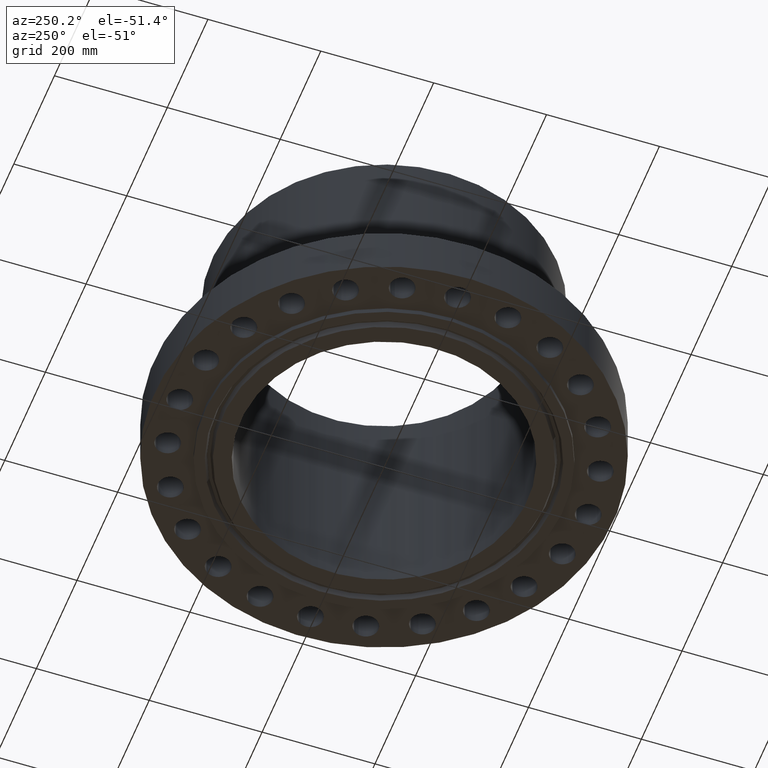
[diagram: clean part render]
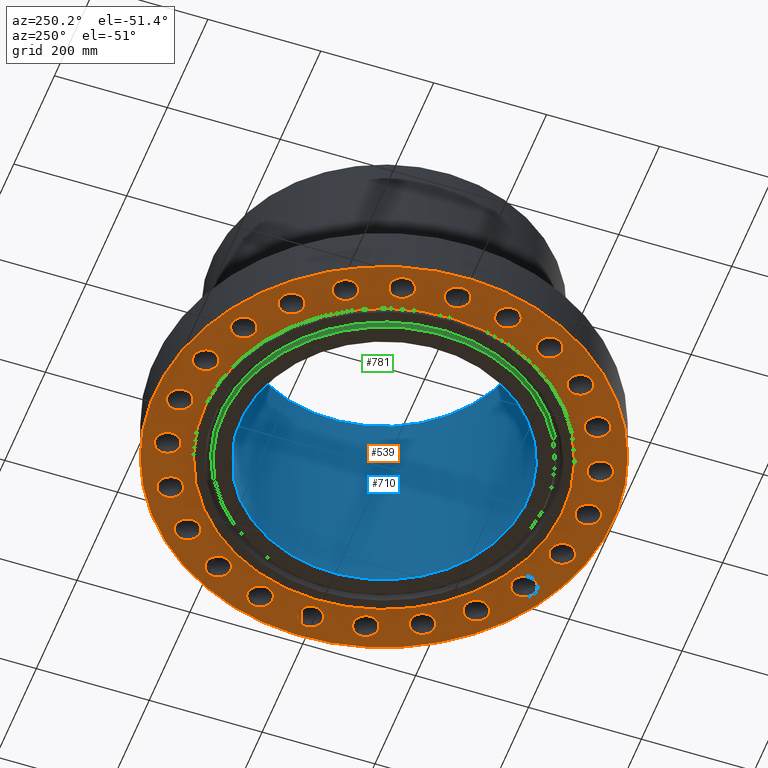
[diagram: same view with three faces highlighted in distinct colors, each labeled with its STEP entity id]
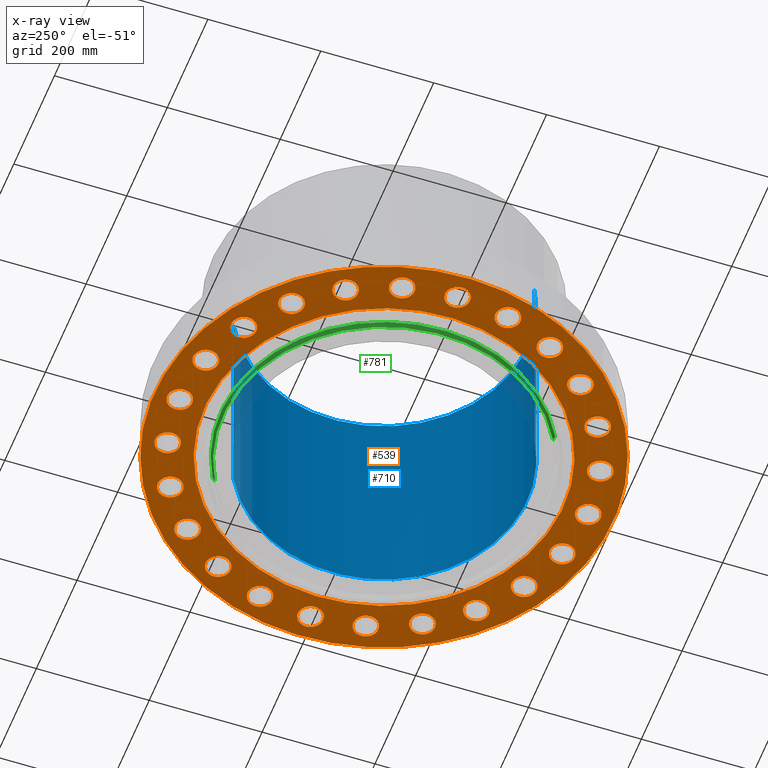
[diagram: x-ray of the same camera — body ghosted, the three highlighted faces saturated]
A machine part, auxiliary view with three faces highlighted in distinct colors.
The next image is the same camera in x-ray (body ghosted, the three faces saturated) — at least one of them is partly hidden behind the body in this view.
Their STEP definitions:

[orange] entity #539 — the highlighted planar face has unit normal (0, 0, -1).
#65=AXIS2_PLACEMENT_3D('Circle Axis2P3D',#63,#64,$) ;
#78=AXIS2_PLACEMENT_3D('Plane Axis2P3D',#75,#76,#77) ;
#82=AXIS2_PLACEMENT_3D('Circle Axis2P3D',#80,#81,$) ;
#91=AXIS2_PLACEMENT_3D('Circle Axis2P3D',#89,#90,$) ;
#100=AXIS2_PLACEMENT_3D('Circle Axis2P3D',#98,#99,$) ;
#109=AXIS2_PLACEMENT_3D('Circle Axis2P3D',#107,#108,$) ;
#118=AXIS2_PLACEMENT_3D('Circle Axis2P3D',#116,#117,$) ;
#127=AXIS2_PLACEMENT_3D('Circle Axis2P3D',#125,#126,$) ;
#136=AXIS2_PLACEMENT_3D('Circle Axis2P3D',#134,#135,$) ;
#145=AXIS2_PLACEMENT_3D('Circle Axis2P3D',#143,#144,$) ;
#154=AXIS2_PLACEMENT_3D('Circle Axis2P3D',#152,#153,$) ;
#163=AXIS2_PLACEMENT_3D('Circle Axis2P3D',#161,#162,$) ;
#172=AXIS2_PLACEMENT_3D('Circle Axis2P3D',#170,#171,$) ;
#181=AXIS2_PLACEMENT_3D('Circle Axis2P3D',#179,#180,$) ;
#190=AXIS2_PLACEMENT_3D('Circle Axis2P3D',#188,#189,$) ;
#199=AXIS2_PLACEMENT_3D('Circle Axis2P3D',#197,#198,$) ;
#208=AXIS2_PLACEMENT_3D('Circle Axis2P3D',#206,#207,$) ;
#217=AXIS2_PLACEMENT_3D('Circle Axis2P3D',#215,#216,$) ;
#226=AXIS2_PLACEMENT_3D('Circle Axis2P3D',#224,#225,$) ;
#235=AXIS2_PLACEMENT_3D('Circle Axis2P3D',#233,#234,$) ;
#244=AXIS2_PLACEMENT_3D('Circle Axis2P3D',#242,#243,$) ;
#253=AXIS2_PLACEMENT_3D('Circle Axis2P3D',#251,#252,$) ;
#262=AXIS2_PLACEMENT_3D('Circle Axis2P3D',#260,#261,$) ;
#271=AXIS2_PLACEMENT_3D('Circle Axis2P3D',#269,#270,$) ;
#280=AXIS2_PLACEMENT_3D('Circle Axis2P3D',#278,#279,$) ;
#289=AXIS2_PLACEMENT_3D('Circle Axis2P3D',#287,#288,$) ;
#298=AXIS2_PLACEMENT_3D('Circle Axis2P3D',#296,#297,$) ;
#307=AXIS2_PLACEMENT_3D('Circle Axis2P3D',#305,#306,$) ;
#316=AXIS2_PLACEMENT_3D('Circle Axis2P3D',#314,#315,$) ;
#325=AXIS2_PLACEMENT_3D('Circle Axis2P3D',#323,#324,$) ;
#334=AXIS2_PLACEMENT_3D('Circle Axis2P3D',#332,#333,$) ;
#343=AXIS2_PLACEMENT_3D('Circle Axis2P3D',#341,#342,$) ;
#352=AXIS2_PLACEMENT_3D('Circle Axis2P3D',#350,#351,$) ;
#361=AXIS2_PLACEMENT_3D('Circle Axis2P3D',#359,#360,$) ;
#370=AXIS2_PLACEMENT_3D('Circle Axis2P3D',#368,#369,$) ;
#379=AXIS2_PLACEMENT_3D('Circle Axis2P3D',#377,#378,$) ;
#388=AXIS2_PLACEMENT_3D('Circle Axis2P3D',#386,#387,$) ;
#397=AXIS2_PLACEMENT_3D('Circle Axis2P3D',#395,#396,$) ;
#406=AXIS2_PLACEMENT_3D('Circle Axis2P3D',#404,#405,$) ;
#415=AXIS2_PLACEMENT_3D('Circle Axis2P3D',#413,#414,$) ;
#424=AXIS2_PLACEMENT_3D('Circle Axis2P3D',#422,#423,$) ;
#433=AXIS2_PLACEMENT_3D('Circle Axis2P3D',#431,#432,$) ;
#442=AXIS2_PLACEMENT_3D('Circle Axis2P3D',#440,#441,$) ;
#451=AXIS2_PLACEMENT_3D('Circle Axis2P3D',#449,#450,$) ;
#460=AXIS2_PLACEMENT_3D('Circle Axis2P3D',#458,#459,$) ;
#469=AXIS2_PLACEMENT_3D('Circle Axis2P3D',#467,#468,$) ;
#478=AXIS2_PLACEMENT_3D('Circle Axis2P3D',#476,#477,$) ;
#487=AXIS2_PLACEMENT_3D('Circle Axis2P3D',#485,#486,$) ;
#496=AXIS2_PLACEMENT_3D('Circle Axis2P3D',#494,#495,$) ;
#505=AXIS2_PLACEMENT_3D('Circle Axis2P3D',#503,#504,$) ;
#514=AXIS2_PLACEMENT_3D('Circle Axis2P3D',#512,#513,$) ;
#523=AXIS2_PLACEMENT_3D('Circle Axis2P3D',#521,#522,$) ;
#532=AXIS2_PLACEMENT_3D('Circle Axis2P3D',#530,#531,$) ;
#46=CARTESIAN_POINT('Vertex',(13.4821152584,-0.41949734628,2.2401153548E-016)) ;
#60=CARTESIAN_POINT('Vertex',(15.0178847417,0.41949734628,2.2401153548E-016)) ;
#63=CARTESIAN_POINT('Axis2P3D Location',(14.2500000001,0.,0.)) ;
#75=CARTESIAN_POINT('Axis2P3D Location',(0.,11.4353768465,0.)) ;
#80=CARTESIAN_POINT('Axis2P3D Location',(0.,0.,0.)) ;
#84=CARTESIAN_POINT('Vertex',(-7.6708086177,-14.0413209903,2.23792987641E-015)) ;
#86=CARTESIAN_POINT('Vertex',(7.6708086177,14.0413209903,2.23792987641E-015)) ;
#89=CARTESIAN_POINT('Axis2P3D Location',(0.,0.,0.)) ;
#98=CARTESIAN_POINT('Axis2P3D Location',(14.2500000001,2.23792987641E-015,0.)) ;
#107=CARTESIAN_POINT('Axis2P3D Location',(0.,0.,0.)) ;
#111=CARTESIAN_POINT('Vertex',(5.99281923258,10.9697820237,1.1189649382E-015)) ;
#113=CARTESIAN_POINT('Vertex',(-5.99281923258,-10.9697820237,1.1189649382E-015)) ;
#116=CARTESIAN_POINT('Axis2P3D Location',(0.,0.,0.)) ;
#125=CARTESIAN_POINT('Axis2P3D Location',(13.7644430247,-3.68817139273,0.)) ;
#129=CARTESIAN_POINT('Vertex',(14.6147366308,-3.48171126748,0.)) ;
#131=CARTESIAN_POINT('Vertex',(12.9141494185,-3.89463151797,0.)) ;
#134=CARTESIAN_POINT('Axis2P3D Location',(13.7644430247,-3.68817139273,0.)) ;
#143=CARTESIAN_POINT('Axis2P3D Location',(12.340862004,-7.12500000003,0.)) ;
#147=CARTESIAN_POINT('Vertex',(13.2156183706,-7.14564701216,0.)) ;
#149=CARTESIAN_POINT('Vertex',(11.4661056374,-7.1043529879,0.)) ;
#152=CARTESIAN_POINT('Axis2P3D Location',(12.340862004,-7.12500000003,0.)) ;
#161=CARTESIAN_POINT('Axis2P3D Location',(10.0762716319,-10.0762716319,0.)) ;
#165=CARTESIAN_POINT('Vertex',(10.9158775582,-10.3226187217,0.)) ;
#167=CARTESIAN_POINT('Vertex',(9.23666570571,-9.8299245422,0.)) ;
#170=CARTESIAN_POINT('Axis2P3D Location',(10.0762716319,-10.0762716319,0.)) ;
#179=CARTESIAN_POINT('Axis2P3D Location',(7.12500000003,-12.340862004,0.)) ;
#183=CARTESIAN_POINT('Vertex',(7.87223772956,-12.7961210243,0.)) ;
#185=CARTESIAN_POINT('Vertex',(6.3777622705,-11.8856029837,0.)) ;
#188=CARTESIAN_POINT('Axis2P3D Location',(7.12500000003,-12.340862004,0.)) ;
#197=CARTESIAN_POINT('Axis2P3D Location',(3.68817139273,-13.7644430247,0.)) ;
#201=CARTESIAN_POINT('Vertex',(4.29211790914,-14.3975888257,0.)) ;
#203=CARTESIAN_POINT('Vertex',(3.08422487631,-13.1312972237,0.)) ;
#206=CARTESIAN_POINT('Axis2P3D Location',(3.68817139273,-13.7644430247,0.)) ;
#215=CARTESIAN_POINT('Axis2P3D Location',(-2.79741234551E-016,-14.2500000001,0.)) ;
#219=CARTESIAN_POINT('Vertex',(0.41949734628,-15.0178847417,0.)) ;
#221=CARTESIAN_POINT('Vertex',(-0.41949734628,-13.4821152584,0.)) ;
#224=CARTESIAN_POINT('Axis2P3D Location',(-2.09805925913E-015,-14.2500000001,0.)) ;
#233=CARTESIAN_POINT('Axis2P3D Location',(-3.68817139273,-13.7644430247,0.)) ;
#237=CARTESIAN_POINT('Vertex',(-3.48171126748,-14.6147366308,0.)) ;
#239=CARTESIAN_POINT('Vertex',(-3.89463151797,-12.9141494185,0.)) ;
#242=CARTESIAN_POINT('Axis2P3D Location',(-3.68817139273,-13.7644430247,0.)) ;
#251=CARTESIAN_POINT('Axis2P3D Location',(-7.12500000003,-12.340862004,0.)) ;
#255=CARTESIAN_POINT('Vertex',(-7.14564701216,-13.2156183706,0.)) ;
#257=CARTESIAN_POINT('Vertex',(-7.1043529879,-11.4661056374,0.)) ;
#260=CARTESIAN_POINT('Axis2P3D Location',(-7.12500000003,-12.340862004,0.)) ;
#269=CARTESIAN_POINT('Axis2P3D Location',(-10.0762716319,-10.0762716319,0.)) ;
#273=CARTESIAN_POINT('Vertex',(-10.3226187217,-10.9158775582,0.)) ;
#275=CARTESIAN_POINT('Vertex',(-9.8299245422,-9.23666570571,0.)) ;
#278=CARTESIAN_POINT('Axis2P3D Location',(-10.0762716319,-10.0762716319,0.)) ;
#287=CARTESIAN_POINT('Axis2P3D Location',(-12.340862004,-7.12500000003,0.)) ;
#291=CARTESIAN_POINT('Vertex',(-12.7961210243,-7.87223772956,0.)) ;
#293=CARTESIAN_POINT('Vertex',(-11.8856029837,-6.3777622705,0.)) ;
#296=CARTESIAN_POINT('Axis2P3D Location',(-12.340862004,-7.12500000003,0.)) ;
#305=CARTESIAN_POINT('Axis2P3D Location',(-13.7644430247,-3.68817139273,0.)) ;
#309=CARTESIAN_POINT('Vertex',(-14.3975888257,-4.29211790914,0.)) ;
#311=CARTESIAN_POINT('Vertex',(-13.1312972237,-3.08422487631,0.)) ;
#314=CARTESIAN_POINT('Axis2P3D Location',(-13.7644430247,-3.68817139273,0.)) ;
#323=CARTESIAN_POINT('Axis2P3D Location',(-14.2500000001,-2.23792987641E-015,0.)) ;
#327=CARTESIAN_POINT('Vertex',(-15.0178847417,-0.41949734628,0.)) ;
#329=CARTESIAN_POINT('Vertex',(-13.4821152584,0.41949734628,0.)) ;
#332=CARTESIAN_POINT('Axis2P3D Location',(-14.2500000001,-2.23792987641E-015,0.)) ;
#341=CARTESIAN_POINT('Axis2P3D Location',(-13.7644430247,3.68817139273,0.)) ;
#345=CARTESIAN_POINT('Vertex',(-14.6147366308,3.48171126748,0.)) ;
#347=CARTESIAN_POINT('Vertex',(-12.9141494185,3.89463151797,0.)) ;
#350=CARTESIAN_POINT('Axis2P3D Location',(-13.7644430247,3.68817139273,0.)) ;
#359=CARTESIAN_POINT('Axis2P3D Location',(-12.340862004,7.12500000003,0.)) ;
#363=CARTESIAN_POINT('Vertex',(-13.2156183706,7.14564701216,0.)) ;
#365=CARTESIAN_POINT('Vertex',(-11.4661056374,7.1043529879,0.)) ;
#368=CARTESIAN_POINT('Axis2P3D Location',(-12.340862004,7.12500000003,0.)) ;
#377=CARTESIAN_POINT('Axis2P3D Location',(-10.0762716319,10.0762716319,0.)) ;
#381=CARTESIAN_POINT('Vertex',(-10.9158775582,10.3226187217,0.)) ;
#383=CARTESIAN_POINT('Vertex',(-9.23666570571,9.8299245422,0.)) ;
#386=CARTESIAN_POINT('Axis2P3D Location',(-10.0762716319,10.0762716319,0.)) ;
#395=CARTESIAN_POINT('Axis2P3D Location',(-7.12500000003,12.340862004,0.)) ;
#399=CARTESIAN_POINT('Vertex',(-7.87223772956,12.7961210243,0.)) ;
#401=CARTESIAN_POINT('Vertex',(-6.3777622705,11.8856029837,0.)) ;
#404=CARTESIAN_POINT('Axis2P3D Location',(-7.12500000003,12.340862004,0.)) ;
#413=CARTESIAN_POINT('Axis2P3D Location',(-3.68817139273,13.7644430247,0.)) ;
#417=CARTESIAN_POINT('Vertex',(-4.29211790914,14.3975888257,0.)) ;
#419=CARTESIAN_POINT('Vertex',(-3.08422487631,13.1312972237,0.)) ;
#422=CARTESIAN_POINT('Axis2P3D Location',(-3.68817139273,13.7644430247,0.)) ;
#431=CARTESIAN_POINT('Axis2P3D Location',(-3.7065713578E-015,14.2500000001,0.)) ;
#435=CARTESIAN_POINT('Vertex',(-0.41949734628,15.0178847417,0.)) ;
#437=CARTESIAN_POINT('Vertex',(0.41949734628,13.4821152584,0.)) ;
#440=CARTESIAN_POINT('Axis2P3D Location',(-3.00721827143E-015,14.2500000001,0.)) ;
#449=CARTESIAN_POINT('Axis2P3D Location',(3.68817139273,13.7644430247,0.)) ;
#453=CARTESIAN_POINT('Vertex',(3.48171126748,14.6147366308,0.)) ;
#455=CARTESIAN_POINT('Vertex',(3.89463151797,12.9141494185,0.)) ;
#458=CARTESIAN_POINT('Axis2P3D Location',(3.68817139273,13.7644430247,0.)) ;
#467=CARTESIAN_POINT('Axis2P3D Location',(7.12500000003,12.340862004,0.)) ;
#471=CARTESIAN_POINT('Vertex',(7.14564701216,13.2156183706,0.)) ;
#473=CARTESIAN_POINT('Vertex',(7.1043529879,11.4661056374,0.)) ;
#476=CARTESIAN_POINT('Axis2P3D Location',(7.12500000003,12.340862004,0.)) ;
#485=CARTESIAN_POINT('Axis2P3D Location',(10.0762716319,10.0762716319,0.)) ;
#489=CARTESIAN_POINT('Vertex',(10.3226187217,10.9158775582,0.)) ;
#491=CARTESIAN_POINT('Vertex',(9.8299245422,9.23666570571,0.)) ;
#494=CARTESIAN_POINT('Axis2P3D Location',(10.0762716319,10.0762716319,0.)) ;
#503=CARTESIAN_POINT('Axis2P3D Location',(12.340862004,7.12500000003,0.)) ;
#507=CARTESIAN_POINT('Vertex',(12.7961210243,7.87223772956,0.)) ;
#509=CARTESIAN_POINT('Vertex',(11.8856029837,6.3777622705,0.)) ;
#512=CARTESIAN_POINT('Axis2P3D Location',(12.340862004,7.12500000003,0.)) ;
#521=CARTESIAN_POINT('Axis2P3D Location',(13.7644430247,3.68817139273,0.)) ;
#525=CARTESIAN_POINT('Vertex',(14.3975888257,4.29211790914,0.)) ;
#527=CARTESIAN_POINT('Vertex',(13.1312972237,3.08422487631,0.)) ;
#530=CARTESIAN_POINT('Axis2P3D Location',(13.7644430247,3.68817139273,0.)) ;
#64=DIRECTION('Axis2P3D Direction',(0.,-0.,0.0393700787402)) ;
#76=DIRECTION('Axis2P3D Direction',(0.,0.,-0.0393700787402)) ;
#77=DIRECTION('Axis2P3D XDirection',(0.0393700787402,0.,0.)) ;
#81=DIRECTION('Axis2P3D Direction',(0.,0.,-0.0393700787402)) ;
#90=DIRECTION('Axis2P3D Direction',(0.,0.,-0.0393700787402)) ;
#99=DIRECTION('Axis2P3D Direction',(0.,0.,-0.0393700787402)) ;
#108=DIRECTION('Axis2P3D Direction',(0.,0.,-0.0393700787402)) ;
#117=DIRECTION('Axis2P3D Direction',(0.,0.,-0.0393700787402)) ;
#126=DIRECTION('Axis2P3D Direction',(0.,0.,-0.0393700787402)) ;
#135=DIRECTION('Axis2P3D Direction',(0.,0.,-0.0393700787402)) ;
#144=DIRECTION('Axis2P3D Direction',(0.,0.,-0.0393700787402)) ;
#153=DIRECTION('Axis2P3D Direction',(0.,0.,-0.0393700787402)) ;
#162=DIRECTION('Axis2P3D Direction',(0.,0.,-0.0393700787402)) ;
#171=DIRECTION('Axis2P3D Direction',(0.,0.,-0.0393700787402)) ;
#180=DIRECTION('Axis2P3D Direction',(0.,0.,-0.0393700787402)) ;
#189=DIRECTION('Axis2P3D Direction',(0.,0.,-0.0393700787402)) ;
#198=DIRECTION('Axis2P3D Direction',(0.,0.,-0.0393700787402)) ;
#207=DIRECTION('Axis2P3D Direction',(0.,0.,-0.0393700787402)) ;
#216=DIRECTION('Axis2P3D Direction',(0.,0.,-0.0393700787402)) ;
#225=DIRECTION('Axis2P3D Direction',(0.,0.,-0.0393700787402)) ;
#234=DIRECTION('Axis2P3D Direction',(0.,0.,-0.0393700787402)) ;
#243=DIRECTION('Axis2P3D Direction',(0.,0.,-0.0393700787402)) ;
#252=DIRECTION('Axis2P3D Direction',(0.,0.,-0.0393700787402)) ;
#261=DIRECTION('Axis2P3D Direction',(0.,0.,-0.0393700787402)) ;
#270=DIRECTION('Axis2P3D Direction',(0.,0.,-0.0393700787402)) ;
#279=DIRECTION('Axis2P3D Direction',(0.,0.,-0.0393700787402)) ;
#288=DIRECTION('Axis2P3D Direction',(0.,0.,-0.0393700787402)) ;
#297=DIRECTION('Axis2P3D Direction',(0.,0.,-0.0393700787402)) ;
#306=DIRECTION('Axis2P3D Direction',(0.,0.,-0.0393700787402)) ;
#315=DIRECTION('Axis2P3D Direction',(0.,0.,-0.0393700787402)) ;
#324=DIRECTION('Axis2P3D Direction',(0.,0.,-0.0393700787402)) ;
#333=DIRECTION('Axis2P3D Direction',(0.,0.,-0.0393700787402)) ;
#342=DIRECTION('Axis2P3D Direction',(0.,0.,-0.0393700787402)) ;
#351=DIRECTION('Axis2P3D Direction',(0.,0.,-0.0393700787402)) ;
#360=DIRECTION('Axis2P3D Direction',(0.,0.,-0.0393700787402)) ;
#369=DIRECTION('Axis2P3D Direction',(0.,0.,-0.0393700787402)) ;
#378=DIRECTION('Axis2P3D Direction',(0.,0.,-0.0393700787402)) ;
#387=DIRECTION('Axis2P3D Direction',(0.,0.,-0.0393700787402)) ;
#396=DIRECTION('Axis2P3D Direction',(0.,0.,-0.0393700787402)) ;
#405=DIRECTION('Axis2P3D Direction',(0.,0.,-0.0393700787402)) ;
#414=DIRECTION('Axis2P3D Direction',(0.,0.,-0.0393700787402)) ;
#423=DIRECTION('Axis2P3D Direction',(0.,0.,-0.0393700787402)) ;
#432=DIRECTION('Axis2P3D Direction',(0.,0.,-0.0393700787402)) ;
#441=DIRECTION('Axis2P3D Direction',(0.,0.,-0.0393700787402)) ;
#450=DIRECTION('Axis2P3D Direction',(0.,0.,-0.0393700787402)) ;
#459=DIRECTION('Axis2P3D Direction',(0.,0.,-0.0393700787402)) ;
#468=DIRECTION('Axis2P3D Direction',(0.,0.,-0.0393700787402)) ;
#477=DIRECTION('Axis2P3D Direction',(0.,0.,-0.0393700787402)) ;
#486=DIRECTION('Axis2P3D Direction',(0.,0.,-0.0393700787402)) ;
#495=DIRECTION('Axis2P3D Direction',(0.,0.,-0.0393700787402)) ;
#504=DIRECTION('Axis2P3D Direction',(0.,0.,-0.0393700787402)) ;
#513=DIRECTION('Axis2P3D Direction',(0.,0.,-0.0393700787402)) ;
#522=DIRECTION('Axis2P3D Direction',(0.,0.,-0.0393700787402)) ;
#531=DIRECTION('Axis2P3D Direction',(0.,0.,-0.0393700787402)) ;
#95=ORIENTED_EDGE('',*,*,#88,.T.) ;
#96=ORIENTED_EDGE('',*,*,#93,.T.) ;
#104=ORIENTED_EDGE('',*,*,#102,.F.) ;
#105=ORIENTED_EDGE('',*,*,#67,.F.) ;
#122=ORIENTED_EDGE('',*,*,#115,.F.) ;
#123=ORIENTED_EDGE('',*,*,#120,.F.) ;
#140=ORIENTED_EDGE('',*,*,#133,.F.) ;
#141=ORIENTED_EDGE('',*,*,#138,.F.) ;
#158=ORIENTED_EDGE('',*,*,#151,.F.) ;
#159=ORIENTED_EDGE('',*,*,#156,.F.) ;
#176=ORIENTED_EDGE('',*,*,#169,.F.) ;
#177=ORIENTED_EDGE('',*,*,#174,.F.) ;
#194=ORIENTED_EDGE('',*,*,#187,.F.) ;
#195=ORIENTED_EDGE('',*,*,#192,.F.) ;
#212=ORIENTED_EDGE('',*,*,#205,.F.) ;
#213=ORIENTED_EDGE('',*,*,#210,.F.) ;
#230=ORIENTED_EDGE('',*,*,#223,.F.) ;
#231=ORIENTED_EDGE('',*,*,#228,.F.) ;
#248=ORIENTED_EDGE('',*,*,#241,.F.) ;
#249=ORIENTED_EDGE('',*,*,#246,.F.) ;
#266=ORIENTED_EDGE('',*,*,#259,.F.) ;
#267=ORIENTED_EDGE('',*,*,#264,.F.) ;
#284=ORIENTED_EDGE('',*,*,#277,.F.) ;
#285=ORIENTED_EDGE('',*,*,#282,.F.) ;
#302=ORIENTED_EDGE('',*,*,#295,.F.) ;
#303=ORIENTED_EDGE('',*,*,#300,.F.) ;
#320=ORIENTED_EDGE('',*,*,#313,.F.) ;
#321=ORIENTED_EDGE('',*,*,#318,.F.) ;
#338=ORIENTED_EDGE('',*,*,#331,.F.) ;
#339=ORIENTED_EDGE('',*,*,#336,.F.) ;
#356=ORIENTED_EDGE('',*,*,#349,.F.) ;
#357=ORIENTED_EDGE('',*,*,#354,.F.) ;
#374=ORIENTED_EDGE('',*,*,#367,.F.) ;
#375=ORIENTED_EDGE('',*,*,#372,.F.) ;
#392=ORIENTED_EDGE('',*,*,#385,.F.) ;
#393=ORIENTED_EDGE('',*,*,#390,.F.) ;
#410=ORIENTED_EDGE('',*,*,#403,.F.) ;
#411=ORIENTED_EDGE('',*,*,#408,.F.) ;
#428=ORIENTED_EDGE('',*,*,#421,.F.) ;
#429=ORIENTED_EDGE('',*,*,#426,.F.) ;
#446=ORIENTED_EDGE('',*,*,#439,.F.) ;
#447=ORIENTED_EDGE('',*,*,#444,.F.) ;
#464=ORIENTED_EDGE('',*,*,#457,.F.) ;
#465=ORIENTED_EDGE('',*,*,#462,.F.) ;
#482=ORIENTED_EDGE('',*,*,#475,.F.) ;
#483=ORIENTED_EDGE('',*,*,#480,.F.) ;
#500=ORIENTED_EDGE('',*,*,#493,.F.) ;
#501=ORIENTED_EDGE('',*,*,#498,.F.) ;
#518=ORIENTED_EDGE('',*,*,#511,.F.) ;
#519=ORIENTED_EDGE('',*,*,#516,.F.) ;
#536=ORIENTED_EDGE('',*,*,#529,.F.) ;
#537=ORIENTED_EDGE('',*,*,#534,.F.) ;
#106=FACE_BOUND('',#103,.T.) ;
#124=FACE_BOUND('',#121,.T.) ;
#142=FACE_BOUND('',#139,.T.) ;
#160=FACE_BOUND('',#157,.T.) ;
#178=FACE_BOUND('',#175,.T.) ;
#196=FACE_BOUND('',#193,.T.) ;
#214=FACE_BOUND('',#211,.T.) ;
#232=FACE_BOUND('',#229,.T.) ;
#250=FACE_BOUND('',#247,.T.) ;
#268=FACE_BOUND('',#265,.T.) ;
#286=FACE_BOUND('',#283,.T.) ;
#304=FACE_BOUND('',#301,.T.) ;
#322=FACE_BOUND('',#319,.T.) ;
#340=FACE_BOUND('',#337,.T.) ;
#358=FACE_BOUND('',#355,.T.) ;
#376=FACE_BOUND('',#373,.T.) ;
#394=FACE_BOUND('',#391,.T.) ;
#412=FACE_BOUND('',#409,.T.) ;
#430=FACE_BOUND('',#427,.T.) ;
#448=FACE_BOUND('',#445,.T.) ;
#466=FACE_BOUND('',#463,.T.) ;
#484=FACE_BOUND('',#481,.T.) ;
#502=FACE_BOUND('',#499,.T.) ;
#520=FACE_BOUND('',#517,.T.) ;
#538=FACE_BOUND('',#535,.T.) ;
#539=ADVANCED_FACE('PartBody',(#97,#106,#124,#142,#160,#178,#196,#214,#232,#250,#268,#286,#304,#322,#340,#358,#376,#394,#412,#430,#448,#466,#484,#502,#520,#538),#79,.T.) ;
#66=CIRCLE('generated circle',#65,0.875000000004) ;
#83=CIRCLE('generated circle',#82,16.0000000001) ;
#92=CIRCLE('generated circle',#91,16.0000000001) ;
#101=CIRCLE('generated circle',#100,0.875000000003) ;
#110=CIRCLE('generated circle',#109,12.5000000001) ;
#119=CIRCLE('generated circle',#118,12.5000000001) ;
#128=CIRCLE('generated circle',#127,0.875000000004) ;
#137=CIRCLE('generated circle',#136,0.875000000004) ;
#146=CIRCLE('generated circle',#145,0.875000000003) ;
#155=CIRCLE('generated circle',#154,0.875000000003) ;
#164=CIRCLE('generated circle',#163,0.875000000004) ;
#173=CIRCLE('generated circle',#172,0.875000000003) ;
#182=CIRCLE('generated circle',#181,0.875000000004) ;
#191=CIRCLE('generated circle',#190,0.875000000003) ;
#200=CIRCLE('generated circle',#199,0.875000000003) ;
#209=CIRCLE('generated circle',#208,0.875000000004) ;
#218=CIRCLE('generated circle',#217,0.875000000004) ;
#227=CIRCLE('generated circle',#226,0.875000000004) ;
#236=CIRCLE('generated circle',#235,0.875000000004) ;
#245=CIRCLE('generated circle',#244,0.875000000004) ;
#254=CIRCLE('generated circle',#253,0.875000000003) ;
#263=CIRCLE('generated circle',#262,0.875000000003) ;
#272=CIRCLE('generated circle',#271,0.875000000003) ;
#281=CIRCLE('generated circle',#280,0.875000000003) ;
#290=CIRCLE('generated circle',#289,0.875000000003) ;
#299=CIRCLE('generated circle',#298,0.875000000004) ;
#308=CIRCLE('generated circle',#307,0.875000000004) ;
#317=CIRCLE('generated circle',#316,0.875000000004) ;
#326=CIRCLE('generated circle',#325,0.875000000004) ;
#335=CIRCLE('generated circle',#334,0.875000000004) ;
#344=CIRCLE('generated circle',#343,0.875000000004) ;
#353=CIRCLE('generated circle',#352,0.875000000004) ;
#362=CIRCLE('generated circle',#361,0.875000000003) ;
#371=CIRCLE('generated circle',#370,0.875000000003) ;
#380=CIRCLE('generated circle',#379,0.875000000004) ;
#389=CIRCLE('generated circle',#388,0.875000000004) ;
#398=CIRCLE('generated circle',#397,0.875000000004) ;
#407=CIRCLE('generated circle',#406,0.875000000004) ;
#416=CIRCLE('generated circle',#415,0.875000000003) ;
#425=CIRCLE('generated circle',#424,0.875000000003) ;
#434=CIRCLE('generated circle',#433,0.875000000004) ;
#443=CIRCLE('generated circle',#442,0.875000000004) ;
#452=CIRCLE('generated circle',#451,0.875000000004) ;
#461=CIRCLE('generated circle',#460,0.875000000003) ;
#470=CIRCLE('generated circle',#469,0.875000000003) ;
#479=CIRCLE('generated circle',#478,0.875000000003) ;
#488=CIRCLE('generated circle',#487,0.875000000004) ;
#497=CIRCLE('generated circle',#496,0.875000000004) ;
#506=CIRCLE('generated circle',#505,0.875000000004) ;
#515=CIRCLE('generated circle',#514,0.875000000004) ;
#524=CIRCLE('generated circle',#523,0.875000000003) ;
#533=CIRCLE('generated circle',#532,0.875000000003) ;
#67=EDGE_CURVE('',#61,#47,#66,.F.) ;
#88=EDGE_CURVE('',#85,#87,#83,.T.) ;
#93=EDGE_CURVE('',#87,#85,#92,.T.) ;
#102=EDGE_CURVE('',#47,#61,#101,.T.) ;
#115=EDGE_CURVE('',#112,#114,#110,.T.) ;
#120=EDGE_CURVE('',#114,#112,#119,.T.) ;
#133=EDGE_CURVE('',#130,#132,#128,.T.) ;
#138=EDGE_CURVE('',#132,#130,#137,.T.) ;
#151=EDGE_CURVE('',#148,#150,#146,.T.) ;
#156=EDGE_CURVE('',#150,#148,#155,.T.) ;
#169=EDGE_CURVE('',#166,#168,#164,.T.) ;
#174=EDGE_CURVE('',#168,#166,#173,.T.) ;
#187=EDGE_CURVE('',#184,#186,#182,.T.) ;
#192=EDGE_CURVE('',#186,#184,#191,.T.) ;
#205=EDGE_CURVE('',#202,#204,#200,.T.) ;
#210=EDGE_CURVE('',#204,#202,#209,.T.) ;
#223=EDGE_CURVE('',#220,#222,#218,.T.) ;
#228=EDGE_CURVE('',#222,#220,#227,.T.) ;
#241=EDGE_CURVE('',#238,#240,#236,.T.) ;
#246=EDGE_CURVE('',#240,#238,#245,.T.) ;
#259=EDGE_CURVE('',#256,#258,#254,.T.) ;
#264=EDGE_CURVE('',#258,#256,#263,.T.) ;
#277=EDGE_CURVE('',#274,#276,#272,.T.) ;
#282=EDGE_CURVE('',#276,#274,#281,.T.) ;
#295=EDGE_CURVE('',#292,#294,#290,.T.) ;
#300=EDGE_CURVE('',#294,#292,#299,.T.) ;
#313=EDGE_CURVE('',#310,#312,#308,.T.) ;
#318=EDGE_CURVE('',#312,#310,#317,.T.) ;
#331=EDGE_CURVE('',#328,#330,#326,.T.) ;
#336=EDGE_CURVE('',#330,#328,#335,.T.) ;
#349=EDGE_CURVE('',#346,#348,#344,.T.) ;
#354=EDGE_CURVE('',#348,#346,#353,.T.) ;
#367=EDGE_CURVE('',#364,#366,#362,.T.) ;
#372=EDGE_CURVE('',#366,#364,#371,.T.) ;
#385=EDGE_CURVE('',#382,#384,#380,.T.) ;
#390=EDGE_CURVE('',#384,#382,#389,.T.) ;
#403=EDGE_CURVE('',#400,#402,#398,.T.) ;
#408=EDGE_CURVE('',#402,#400,#407,.T.) ;
#421=EDGE_CURVE('',#418,#420,#416,.T.) ;
#426=EDGE_CURVE('',#420,#418,#425,.T.) ;
#439=EDGE_CURVE('',#436,#438,#434,.T.) ;
#444=EDGE_CURVE('',#438,#436,#443,.T.) ;
#457=EDGE_CURVE('',#454,#456,#452,.T.) ;
#462=EDGE_CURVE('',#456,#454,#461,.T.) ;
#475=EDGE_CURVE('',#472,#474,#470,.T.) ;
#480=EDGE_CURVE('',#474,#472,#479,.T.) ;
#493=EDGE_CURVE('',#490,#492,#488,.T.) ;
#498=EDGE_CURVE('',#492,#490,#497,.T.) ;
#511=EDGE_CURVE('',#508,#510,#506,.T.) ;
#516=EDGE_CURVE('',#510,#508,#515,.T.) ;
#529=EDGE_CURVE('',#526,#528,#524,.T.) ;
#534=EDGE_CURVE('',#528,#526,#533,.T.) ;
#94=EDGE_LOOP('',(#95,#96)) ;
#103=EDGE_LOOP('',(#104,#105)) ;
#121=EDGE_LOOP('',(#122,#123)) ;
#139=EDGE_LOOP('',(#140,#141)) ;
#157=EDGE_LOOP('',(#158,#159)) ;
#175=EDGE_LOOP('',(#176,#177)) ;
#193=EDGE_LOOP('',(#194,#195)) ;
#211=EDGE_LOOP('',(#212,#213)) ;
#229=EDGE_LOOP('',(#230,#231)) ;
#247=EDGE_LOOP('',(#248,#249)) ;
#265=EDGE_LOOP('',(#266,#267)) ;
#283=EDGE_LOOP('',(#284,#285)) ;
#301=EDGE_LOOP('',(#302,#303)) ;
#319=EDGE_LOOP('',(#320,#321)) ;
#337=EDGE_LOOP('',(#338,#339)) ;
#355=EDGE_LOOP('',(#356,#357)) ;
#373=EDGE_LOOP('',(#374,#375)) ;
#391=EDGE_LOOP('',(#392,#393)) ;
#409=EDGE_LOOP('',(#410,#411)) ;
#427=EDGE_LOOP('',(#428,#429)) ;
#445=EDGE_LOOP('',(#446,#447)) ;
#463=EDGE_LOOP('',(#464,#465)) ;
#481=EDGE_LOOP('',(#482,#483)) ;
#499=EDGE_LOOP('',(#500,#501)) ;
#517=EDGE_LOOP('',(#518,#519)) ;
#535=EDGE_LOOP('',(#536,#537)) ;
#97=FACE_OUTER_BOUND('',#94,.T.) ;
#79=PLANE('',#78) ;
#47=VERTEX_POINT('',#46) ;
#61=VERTEX_POINT('',#60) ;
#85=VERTEX_POINT('',#84) ;
#87=VERTEX_POINT('',#86) ;
#112=VERTEX_POINT('',#111) ;
#114=VERTEX_POINT('',#113) ;
#130=VERTEX_POINT('',#129) ;
#132=VERTEX_POINT('',#131) ;
#148=VERTEX_POINT('',#147) ;
#150=VERTEX_POINT('',#149) ;
#166=VERTEX_POINT('',#165) ;
#168=VERTEX_POINT('',#167) ;
#184=VERTEX_POINT('',#183) ;
#186=VERTEX_POINT('',#185) ;
#202=VERTEX_POINT('',#201) ;
#204=VERTEX_POINT('',#203) ;
#220=VERTEX_POINT('',#219) ;
#222=VERTEX_POINT('',#221) ;
#238=VERTEX_POINT('',#237) ;
#240=VERTEX_POINT('',#239) ;
#256=VERTEX_POINT('',#255) ;
#258=VERTEX_POINT('',#257) ;
#274=VERTEX_POINT('',#273) ;
#276=VERTEX_POINT('',#275) ;
#292=VERTEX_POINT('',#291) ;
#294=VERTEX_POINT('',#293) ;
#310=VERTEX_POINT('',#309) ;
#312=VERTEX_POINT('',#311) ;
#328=VERTEX_POINT('',#327) ;
#330=VERTEX_POINT('',#329) ;
#346=VERTEX_POINT('',#345) ;
#348=VERTEX_POINT('',#347) ;
#364=VERTEX_POINT('',#363) ;
#366=VERTEX_POINT('',#365) ;
#382=VERTEX_POINT('',#381) ;
#384=VERTEX_POINT('',#383) ;
#400=VERTEX_POINT('',#399) ;
#402=VERTEX_POINT('',#401) ;
#418=VERTEX_POINT('',#417) ;
#420=VERTEX_POINT('',#419) ;
#436=VERTEX_POINT('',#435) ;
#438=VERTEX_POINT('',#437) ;
#454=VERTEX_POINT('',#453) ;
#456=VERTEX_POINT('',#455) ;
#472=VERTEX_POINT('',#471) ;
#474=VERTEX_POINT('',#473) ;
#490=VERTEX_POINT('',#489) ;
#492=VERTEX_POINT('',#491) ;
#508=VERTEX_POINT('',#507) ;
#510=VERTEX_POINT('',#509) ;
#526=VERTEX_POINT('',#525) ;
#528=VERTEX_POINT('',#527) ;

[blue] entity #710 — the highlighted cylindrical surface (partial cylindrical patch) has radius 254 mm, axis along (0, 0, -1).
#672=AXIS2_PLACEMENT_3D('Circle Axis2P3D',#670,#671,$) ;
#683=AXIS2_PLACEMENT_3D('Cylinder Axis2P3D',#680,#681,#682) ;
#694=AXIS2_PLACEMENT_3D('Circle Axis2P3D',#692,#693,$) ;
#665=CARTESIAN_POINT('Vertex',(-4.79425538606,-8.77582561894,15.7500000001)) ;
#667=CARTESIAN_POINT('Vertex',(4.79425538606,8.77582561894,15.7500000001)) ;
#670=CARTESIAN_POINT('Axis2P3D Location',(0.,0.,15.7500000001)) ;
#680=CARTESIAN_POINT('Axis2P3D Location',(0.,0.,7.68750000003)) ;
#685=CARTESIAN_POINT('Line Origine',(4.79425538606,8.77582561894,7.68750000003)) ;
#689=CARTESIAN_POINT('Vertex',(4.79425538606,8.77582561894,-0.375000000001)) ;
#692=CARTESIAN_POINT('Axis2P3D Location',(0.,0.,-0.375000000002)) ;
#696=CARTESIAN_POINT('Vertex',(-4.79425538606,-8.77582561894,-0.375000000001)) ;
#699=CARTESIAN_POINT('Line Origine',(-4.79425538606,-8.77582561894,7.68750000003)) ;
#671=DIRECTION('Axis2P3D Direction',(0.,0.,-0.0393700787402)) ;
#681=DIRECTION('Axis2P3D Direction',(0.,0.,-0.0393700787402)) ;
#682=DIRECTION('Axis2P3D XDirection',(-0.0188750212049,-0.0345504945626,0.)) ;
#686=DIRECTION('Vector Direction',(0.,0.,-0.0393700787402)) ;
#693=DIRECTION('Axis2P3D Direction',(0.,0.,-0.0393700787402)) ;
#700=DIRECTION('Vector Direction',(0.,0.,-0.0393700787402)) ;
#687=VECTOR('Line Direction',#686,0.0393700787402) ;
#701=VECTOR('Line Direction',#700,0.0393700787402) ;
#705=ORIENTED_EDGE('',*,*,#674,.F.) ;
#706=ORIENTED_EDGE('',*,*,#691,.T.) ;
#707=ORIENTED_EDGE('',*,*,#698,.T.) ;
#708=ORIENTED_EDGE('',*,*,#703,.F.) ;
#710=ADVANCED_FACE('PartBody',(#709),#684,.F.) ;
#673=CIRCLE('generated circle',#672,10.) ;
#695=CIRCLE('generated circle',#694,10.) ;
#684=CYLINDRICAL_SURFACE('generated cylinder',#683,10.) ;
#674=EDGE_CURVE('',#668,#666,#673,.T.) ;
#691=EDGE_CURVE('',#668,#690,#688,.T.) ;
#698=EDGE_CURVE('',#690,#697,#695,.T.) ;
#703=EDGE_CURVE('',#666,#697,#702,.T.) ;
#704=EDGE_LOOP('',(#705,#706,#707,#708)) ;
#709=FACE_OUTER_BOUND('',#704,.T.) ;
#688=LINE('Line',#685,#687) ;
#702=LINE('Line',#699,#701) ;
#666=VERTEX_POINT('',#665) ;
#668=VERTEX_POINT('',#667) ;
#690=VERTEX_POINT('',#689) ;
#697=VERTEX_POINT('',#696) ;

[green] entity #781 — the highlighted conical surface has half-angle 23 deg.
#730=AXIS2_PLACEMENT_3D('Circle Axis2P3D',#728,#729,$) ;
#754=AXIS2_PLACEMENT_3D('Cone Axis2P3D',#751,#752,#753) ;
#765=AXIS2_PLACEMENT_3D('Circle Axis2P3D',#763,#764,$) ;
#728=CARTESIAN_POINT('Axis2P3D Location',(0.,0.,-0.375000000001)) ;
#732=CARTESIAN_POINT('Vertex',(-5.38610621347,-9.8592012916,-0.375000000001)) ;
#734=CARTESIAN_POINT('Vertex',(5.38610621347,9.8592012916,-0.375000000001)) ;
#751=CARTESIAN_POINT('Axis2P3D Location',(0.,0.,-0.375000000001)) ;
#756=CARTESIAN_POINT('Line Origine',(-5.42035758226,-9.92189800162,-0.206691969453)) ;
#760=CARTESIAN_POINT('Vertex',(-5.45460895105,-9.98459471164,-0.0383839389053)) ;
#763=CARTESIAN_POINT('Axis2P3D Location',(0.,0.,-0.0383839389053)) ;
#767=CARTESIAN_POINT('Vertex',(5.45460895105,9.98459471164,-0.0383839389053)) ;
#770=CARTESIAN_POINT('Line Origine',(5.42035758226,9.92189800162,-0.206691969453)) ;
#729=DIRECTION('Axis2P3D Direction',(0.,0.,-0.0393700787402)) ;
#752=DIRECTION('Axis2P3D Direction',(-0.,-0.,0.0393700787402)) ;
#753=DIRECTION('Axis2P3D XDirection',(-0.0188750212049,-0.0345504945626,0.)) ;
#757=DIRECTION('Vector Direction',(-0.00737505833565,-0.0134999537303,0.0362403485611)) ;
#764=DIRECTION('Axis2P3D Direction',(-0.,0.,0.0393700787402)) ;
#771=DIRECTION('Vector Direction',(0.00737505833565,0.0134999537303,0.0362403485611)) ;
#758=VECTOR('Line Direction',#757,0.0393700787402) ;
#772=VECTOR('Line Direction',#771,0.0393700787402) ;
#776=ORIENTED_EDGE('',*,*,#736,.F.) ;
#777=ORIENTED_EDGE('',*,*,#762,.T.) ;
#778=ORIENTED_EDGE('',*,*,#769,.T.) ;
#779=ORIENTED_EDGE('',*,*,#774,.F.) ;
#781=ADVANCED_FACE('PartBody',(#780),#755,.T.) ;
#731=CIRCLE('generated circle',#730,11.2345) ;
#766=CIRCLE('generated circle',#765,11.3773850407) ;
#755=CONICAL_SURFACE('Cone',#754,11.2345,0.401425727959) ;
#736=EDGE_CURVE('',#733,#735,#731,.T.) ;
#762=EDGE_CURVE('',#733,#761,#759,.T.) ;
#769=EDGE_CURVE('',#761,#768,#766,.F.) ;
#774=EDGE_CURVE('',#735,#768,#773,.T.) ;
#775=EDGE_LOOP('',(#776,#777,#778,#779)) ;
#780=FACE_OUTER_BOUND('',#775,.T.) ;
#759=LINE('Line',#756,#758) ;
#773=LINE('Line',#770,#772) ;
#733=VERTEX_POINT('',#732) ;
#735=VERTEX_POINT('',#734) ;
#761=VERTEX_POINT('',#760) ;
#768=VERTEX_POINT('',#767) ;